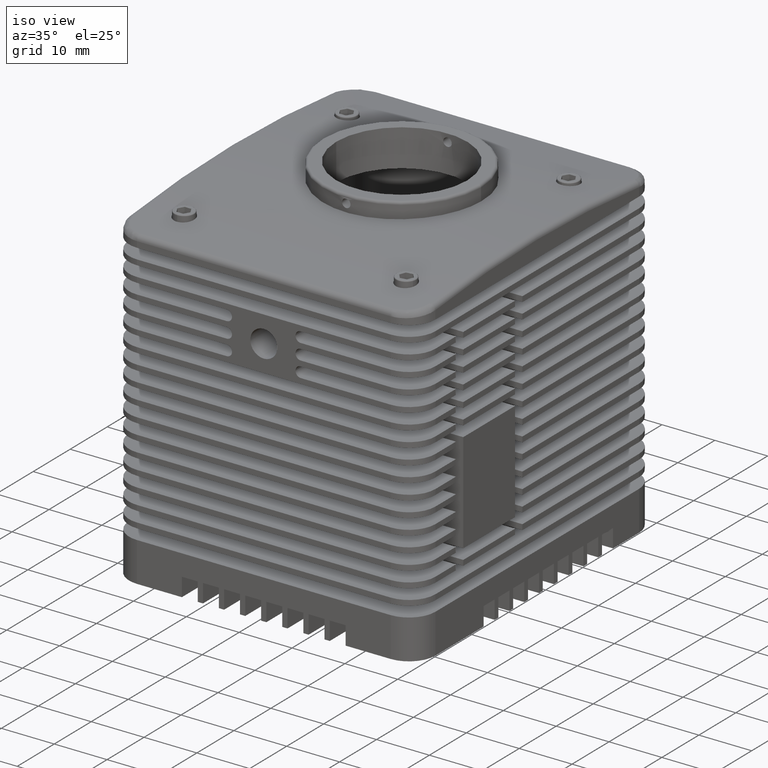
[diagram: clean part render]
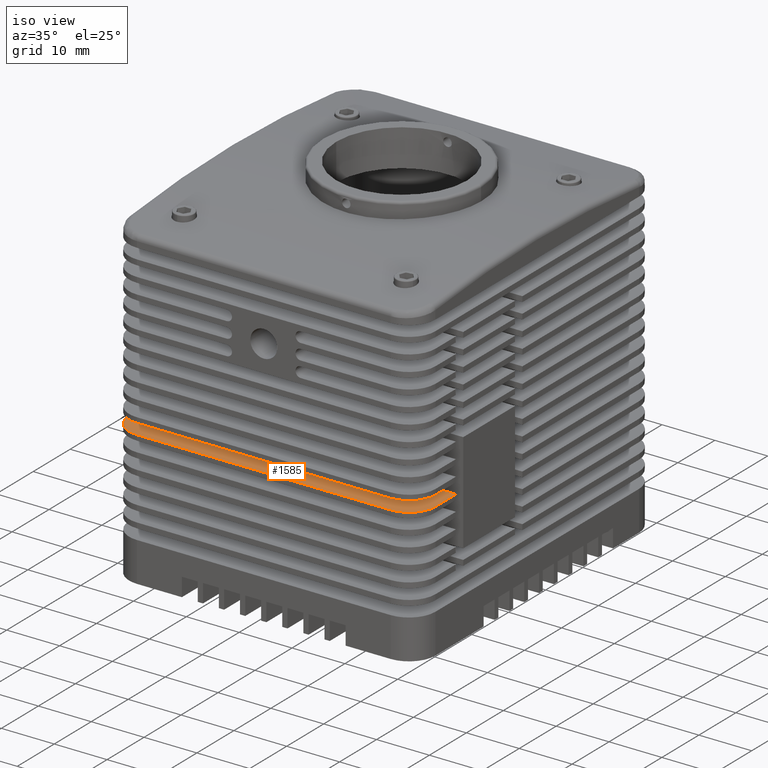
[diagram: same view with one face highlighted and labeled with its STEP entity id]
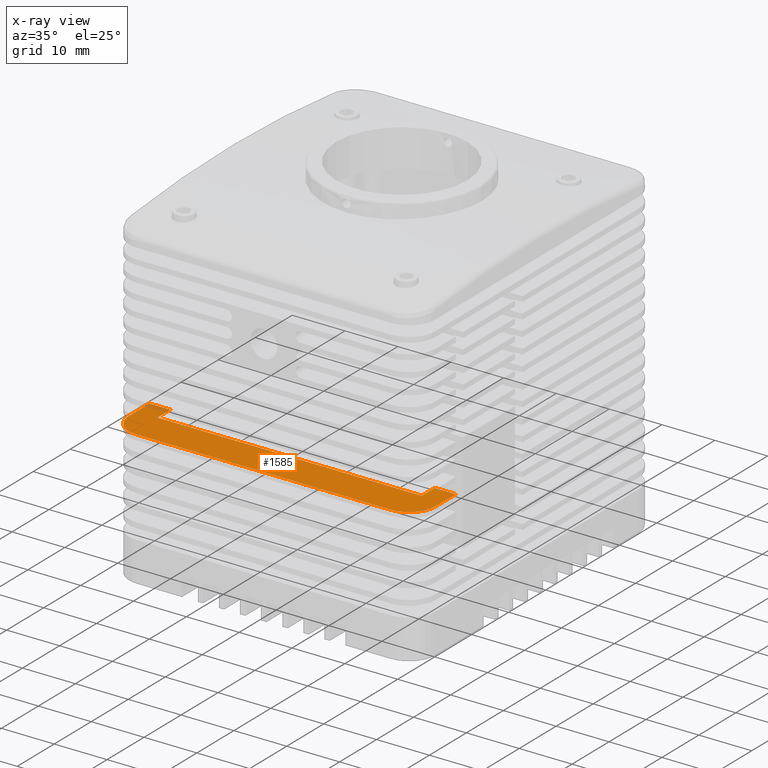
[diagram: x-ray of the same camera — body ghosted, the highlighted face saturated]
A machine part, iso view. The second image highlights one B-rep face of the part: STEP entity #1585.
The next image is the same camera in x-ray: the body ghosted, the highlighted face saturated — about 1% of this face is hidden behind the body in this view.
In plain terms, the highlighted planar face has unit normal (0, 0, 1).
Its self-contained STEP definition (entity closure, byte-faithful):
#6 = CARTESIAN_POINT ( 'NONE',  ( -23.99999999999998900, -32.50000000000000000, 26.00000000000000400 ) ) ;
#1585 = ADVANCED_FACE ( 'NONE', ( #8966 ), #29721, .T. ) ;
#2058 = EDGE_LOOP ( 'NONE', ( #40051, #2433, #42866, #28015, #17706, #36366, #3007, #43364, #20293, #56809 ) ) ;
#2433 = ORIENTED_EDGE ( 'NONE', *, *, #10206, .T. ) ;
#2681 = CARTESIAN_POINT ( 'NONE',  ( 25.00000000000001800, -22.00000000000000400, 26.00000000000000400 ) ) ;
#2889 = VECTOR ( 'NONE', #43680, 1000.000000000000000 ) ;
#2949 = DIRECTION ( 'NONE',  ( 0.0000000000000000000, 0.0000000000000000000, -1.000000000000000000 ) ) ;
#3007 = ORIENTED_EDGE ( 'NONE', *, *, #31127, .T. ) ;
#3279 = LINE ( 'NONE', #21695, #14216 ) ;
#4554 = LINE ( 'NONE', #38263, #2889 ) ;
#5168 = DIRECTION ( 'NONE',  ( -1.000000000000000000, 0.0000000000000000000, 0.0000000000000000000 ) ) ;
#6409 = VERTEX_POINT ( 'NONE', #7495 ) ;
#6746 = CARTESIAN_POINT ( 'NONE',  ( -23.99999999999998900, -22.00000000000000400, 26.00000000000000400 ) ) ;
#7495 = CARTESIAN_POINT ( 'NONE',  ( -25.00000000000001800, -22.00000000000000400, 26.00000000000000400 ) ) ;
#8359 = EDGE_CURVE ( 'NONE', #23502, #22759, #3279, .T. ) ;
#8966 = FACE_OUTER_BOUND ( 'NONE', #2058, .T. ) ;
#10206 = EDGE_CURVE ( 'NONE', #16010, #6409, #16516, .T. ) ;
#11010 = DIRECTION ( 'NONE',  ( 0.0000000000000000000, 0.0000000000000000000, -1.000000000000000000 ) ) ;
#12126 = EDGE_CURVE ( 'NONE', #45863, #16488, #27180, .T. ) ;
#12931 = VECTOR ( 'NONE', #39128, 1000.000000000000000 ) ;
#14216 = VECTOR ( 'NONE', #53674, 1000.000000000000000 ) ;
#14949 = DIRECTION ( 'NONE',  ( -1.000000000000000000, -2.523234146875355500E-016, 0.0000000000000000000 ) ) ;
#15365 = CARTESIAN_POINT ( 'NONE',  ( -25.00000000000000400, -25.49999999999999600, 26.00000000000000400 ) ) ;
#16010 = VERTEX_POINT ( 'NONE', #24281 ) ;
#16488 = VERTEX_POINT ( 'NONE', #6 ) ;
#16516 = LINE ( 'NONE', #6746, #46667 ) ;
#17706 = ORIENTED_EDGE ( 'NONE', *, *, #8359, .T. ) ;
#19363 = CARTESIAN_POINT ( 'NONE',  ( -25.00000000000000400, -25.49999999999999600, 26.00000000000000400 ) ) ;
#20293 = ORIENTED_EDGE ( 'NONE', *, *, #12126, .T. ) ;
#20538 = AXIS2_PLACEMENT_3D ( 'NONE', #43117, #11010, #48456 ) ;
#20802 = CARTESIAN_POINT ( 'NONE',  ( -23.99999999999998900, -22.00000000000001800, 26.00000000000000400 ) ) ;
#21112 = CIRCLE ( 'NONE', #20538, 5.000000000000000900 ) ;
#21695 = CARTESIAN_POINT ( 'NONE',  ( 25.00000000000001800, -20.99999999999999300, 26.00000000000000400 ) ) ;
#22759 = VERTEX_POINT ( 'NONE', #2681 ) ;
#23271 = EDGE_CURVE ( 'NONE', #29853, #22759, #46149, .T. ) ;
#23502 = VERTEX_POINT ( 'NONE', #38050 ) ;
#24281 = CARTESIAN_POINT ( 'NONE',  ( -29.00000000000001800, -22.00000000000000400, 26.00000000000000400 ) ) ;
#24333 = CARTESIAN_POINT ( 'NONE',  ( -23.99999999999998900, -27.50000000000000000, 26.00000000000000400 ) ) ;
#25971 = LINE ( 'NONE', #19363, #65214 ) ;
#26328 = EDGE_CURVE ( 'NONE', #46105, #16010, #60253, .T. ) ;
#27180 = LINE ( 'NONE', #60349, #12931 ) ;
#28015 = ORIENTED_EDGE ( 'NONE', *, *, #66967, .T. ) ;
#28110 = DIRECTION ( 'NONE',  ( 1.000000000000000000, -2.523234146875355500E-016, 0.0000000000000000000 ) ) ;
#28882 = CARTESIAN_POINT ( 'NONE',  ( -28.99999999999998900, -27.50000000000000000, 26.00000000000000400 ) ) ;
#29721 = PLANE ( 'NONE',  #55160 ) ;
#29853 = VERTEX_POINT ( 'NONE', #35325 ) ;
#30215 = VECTOR ( 'NONE', #34260, 1000.000000000000000 ) ;
#31127 = EDGE_CURVE ( 'NONE', #29853, #65748, #4554, .T. ) ;
#34260 = DIRECTION ( 'NONE',  ( 0.0000000000000000000, 1.000000000000000000, 0.0000000000000000000 ) ) ;
#35325 = CARTESIAN_POINT ( 'NONE',  ( 29.00000000000001800, -22.00000000000000400, 26.00000000000000400 ) ) ;
#36366 = ORIENTED_EDGE ( 'NONE', *, *, #23271, .F. ) ;
#36957 = EDGE_CURVE ( 'NONE', #16488, #46105, #21112, .T. ) ;
#37263 = DIRECTION ( 'NONE',  ( 0.0000000000000000000, 0.0000000000000000000, -1.000000000000000000 ) ) ;
#38050 = CARTESIAN_POINT ( 'NONE',  ( 25.00000000000001800, -25.49999999999999600, 26.00000000000000400 ) ) ;
#38263 = CARTESIAN_POINT ( 'NONE',  ( 28.99999999999999600, -21.00000000000000000, 26.00000000000000400 ) ) ;
#38592 = EDGE_CURVE ( 'NONE', #6409, #62559, #25971, .T. ) ;
#39128 = DIRECTION ( 'NONE',  ( -1.000000000000000000, 0.0000000000000000000, 0.0000000000000000000 ) ) ;
#40051 = ORIENTED_EDGE ( 'NONE', *, *, #26328, .T. ) ;
#40452 = DIRECTION ( 'NONE',  ( -1.000000000000000000, 0.0000000000000000000, -0.0000000000000000000 ) ) ;
#42866 = ORIENTED_EDGE ( 'NONE', *, *, #38592, .T. ) ;
#43117 = CARTESIAN_POINT ( 'NONE',  ( -23.99999999999998900, -27.50000000000000000, 26.00000000000000400 ) ) ;
#43364 = ORIENTED_EDGE ( 'NONE', *, *, #56791, .T. ) ;
#43680 = DIRECTION ( 'NONE',  ( 3.202566417187952000E-015, -1.000000000000000000, 0.0000000000000000000 ) ) ;
#44308 = CARTESIAN_POINT ( 'NONE',  ( 25.00000000000001800, -25.49999999999999600, 26.00000000000000400 ) ) ;
#45424 = CARTESIAN_POINT ( 'NONE',  ( -28.99999999999998900, -27.50000000000000000, 26.00000000000000400 ) ) ;
#45863 = VERTEX_POINT ( 'NONE', #59816 ) ;
#46105 = VERTEX_POINT ( 'NONE', #45424 ) ;
#46149 = LINE ( 'NONE', #20802, #60261 ) ;
#46667 = VECTOR ( 'NONE', #28110, 1000.000000000000000 ) ;
#48456 = DIRECTION ( 'NONE',  ( -1.000000000000000000, 0.0000000000000000000, 0.0000000000000000000 ) ) ;
#49842 = AXIS2_PLACEMENT_3D ( 'NONE', #69271, #37263, #5168 ) ;
#53674 = DIRECTION ( 'NONE',  ( -0.0000000000000000000, 1.000000000000000000, -0.0000000000000000000 ) ) ;
#53929 = VECTOR ( 'NONE', #65746, 1000.000000000000000 ) ;
#55160 = AXIS2_PLACEMENT_3D ( 'NONE', #24333, #2949, #40452 ) ;
#56791 = EDGE_CURVE ( 'NONE', #65748, #45863, #61536, .T. ) ;
#56809 = ORIENTED_EDGE ( 'NONE', *, *, #36957, .T. ) ;
#57840 = CARTESIAN_POINT ( 'NONE',  ( 29.00000000000001800, -27.50000000000000000, 26.00000000000000400 ) ) ;
#59816 = CARTESIAN_POINT ( 'NONE',  ( 24.00000000000001400, -32.50000000000000000, 26.00000000000000400 ) ) ;
#60253 = LINE ( 'NONE', #28882, #30215 ) ;
#60261 = VECTOR ( 'NONE', #14949, 1000.000000000000000 ) ;
#60349 = CARTESIAN_POINT ( 'NONE',  ( 24.00000000000001400, -32.50000000000000000, 26.00000000000000400 ) ) ;
#61536 = CIRCLE ( 'NONE', #49842, 5.000000000000004400 ) ;
#62559 = VERTEX_POINT ( 'NONE', #15365 ) ;
#65214 = VECTOR ( 'NONE', #67500, 1000.000000000000000 ) ;
#65746 = DIRECTION ( 'NONE',  ( 1.000000000000000000, -0.0000000000000000000, -0.0000000000000000000 ) ) ;
#65748 = VERTEX_POINT ( 'NONE', #57840 ) ;
#66967 = EDGE_CURVE ( 'NONE', #62559, #23502, #68202, .T. ) ;
#67500 = DIRECTION ( 'NONE',  ( -0.0000000000000000000, -1.000000000000000000, -0.0000000000000000000 ) ) ;
#68202 = LINE ( 'NONE', #44308, #53929 ) ;
#69271 = CARTESIAN_POINT ( 'NONE',  ( 24.00000000000001400, -27.50000000000000000, 26.00000000000000400 ) ) ;